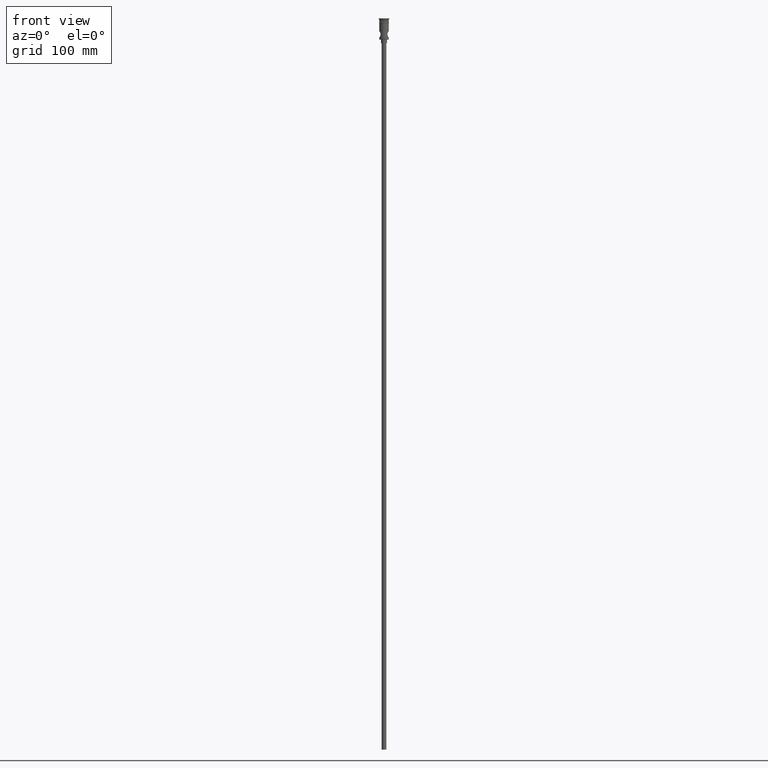
[diagram: clean part render]
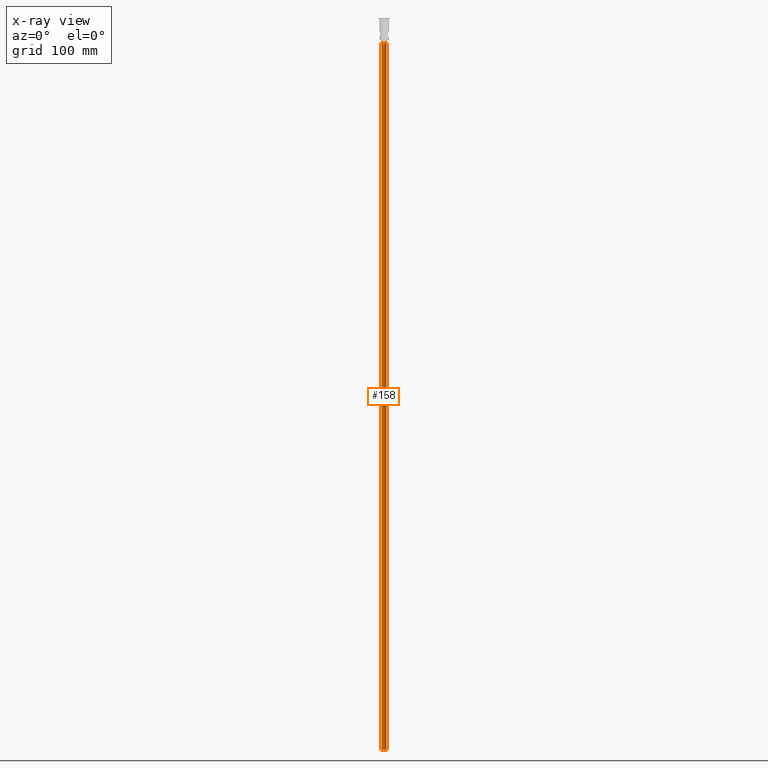
[diagram: x-ray — body ghosted, one internal face saturated and labeled with its STEP entity id]
A machine part, front view, then the same camera in x-ray: the body is ghosted and one INTERNAL B-rep face — a face not visible from any outside direction — is saturated and labeled: STEP entity #158.
In plain terms, the highlighted cylindrical surface (edge-blend (fillet) strip) has radius 2 mm, axis along (-0, -0, 1).
Its self-contained STEP definition (entity closure, byte-faithful):
#22 = AXIS2_PLACEMENT_3D ( 'NONE', #433, #767, #1213 ) ;
#40 = CARTESIAN_POINT ( 'NONE',  ( 0.000000000000000000, 0.000000000000000000, -20.99999999999999645 ) ) ;
#46 = EDGE_CURVE ( 'NONE', #829, #964, #1132, .T. ) ;
#65 = DIRECTION ( 'NONE',  ( -1.000000000000000000, 0.000000000000000000, 0.000000000000000000 ) ) ;
#155 = CARTESIAN_POINT ( 'NONE',  ( -2.000000000000000000, 2.449293598294706414E-16, -618.0000000000000000 ) ) ;
#158 = ADVANCED_FACE ( 'NONE', ( #1404 ), #849, .T. ) ;
#170 = ORIENTED_EDGE ( 'NONE', *, *, #1269, .F. ) ;
#187 = AXIS2_PLACEMENT_3D ( 'NONE', #40, #755, #65 ) ;
#213 = ORIENTED_EDGE ( 'NONE', *, *, #46, .F. ) ;
#223 = ORIENTED_EDGE ( 'NONE', *, *, #1252, .T. ) ;
#226 = DIRECTION ( 'NONE',  ( -0.000000000000000000, -0.000000000000000000, 1.000000000000000000 ) ) ;
#229 = CARTESIAN_POINT ( 'NONE',  ( 2.000000000000000000, 0.000000000000000000, -618.0000000000000000 ) ) ;
#277 = VERTEX_POINT ( 'NONE', #584 ) ;
#324 = DIRECTION ( 'NONE',  ( 1.000000000000000000, 0.000000000000000000, 0.000000000000000000 ) ) ;
#383 = AXIS2_PLACEMENT_3D ( 'NONE', #858, #1306, #324 ) ;
#433 = CARTESIAN_POINT ( 'NONE',  ( 0.000000000000000000, 0.000000000000000000, -618.0000000000000000 ) ) ;
#448 = EDGE_LOOP ( 'NONE', ( #213, #223, #729, #170 ) ) ;
#564 = LINE ( 'NONE', #1208, #620 ) ;
#573 = DIRECTION ( 'NONE',  ( -0.000000000000000000, -0.000000000000000000, 1.000000000000000000 ) ) ;
#584 = CARTESIAN_POINT ( 'NONE',  ( -2.000000000000000000, 2.449293598294706414E-16, -20.99999999999999645 ) ) ;
#620 = VECTOR ( 'NONE', #226, 1000.000000000000000 ) ;
#652 = LINE ( 'NONE', #229, #1429 ) ;
#674 = VERTEX_POINT ( 'NONE', #1041 ) ;
#729 = ORIENTED_EDGE ( 'NONE', *, *, #1049, .T. ) ;
#755 = DIRECTION ( 'NONE',  ( 0.000000000000000000, 0.000000000000000000, -1.000000000000000000 ) ) ;
#767 = DIRECTION ( 'NONE',  ( 0.000000000000000000, 0.000000000000000000, -1.000000000000000000 ) ) ;
#829 = VERTEX_POINT ( 'NONE', #155 ) ;
#849 = CYLINDRICAL_SURFACE ( 'NONE', #383, 2.000000000000000000 ) ;
#858 = CARTESIAN_POINT ( 'NONE',  ( 0.000000000000000000, 0.000000000000000000, -618.0000000000000000 ) ) ;
#964 = VERTEX_POINT ( 'NONE', #1073 ) ;
#1041 = CARTESIAN_POINT ( 'NONE',  ( 2.000000000000000000, 0.000000000000000000, -20.99999999999999645 ) ) ;
#1049 = EDGE_CURVE ( 'NONE', #277, #674, #1144, .T. ) ;
#1073 = CARTESIAN_POINT ( 'NONE',  ( 2.000000000000000000, 0.000000000000000000, -618.0000000000000000 ) ) ;
#1132 = CIRCLE ( 'NONE', #22, 2.000000000000000000 ) ;
#1144 = CIRCLE ( 'NONE', #187, 2.000000000000000000 ) ;
#1208 = CARTESIAN_POINT ( 'NONE',  ( -2.000000000000000000, 2.449293598294706414E-16, -618.0000000000000000 ) ) ;
#1213 = DIRECTION ( 'NONE',  ( -1.000000000000000000, 0.000000000000000000, 0.000000000000000000 ) ) ;
#1252 = EDGE_CURVE ( 'NONE', #829, #277, #564, .T. ) ;
#1269 = EDGE_CURVE ( 'NONE', #964, #674, #652, .T. ) ;
#1306 = DIRECTION ( 'NONE',  ( -0.000000000000000000, -0.000000000000000000, 1.000000000000000000 ) ) ;
#1404 = FACE_OUTER_BOUND ( 'NONE', #448, .T. ) ;
#1429 = VECTOR ( 'NONE', #573, 1000.000000000000000 ) ;